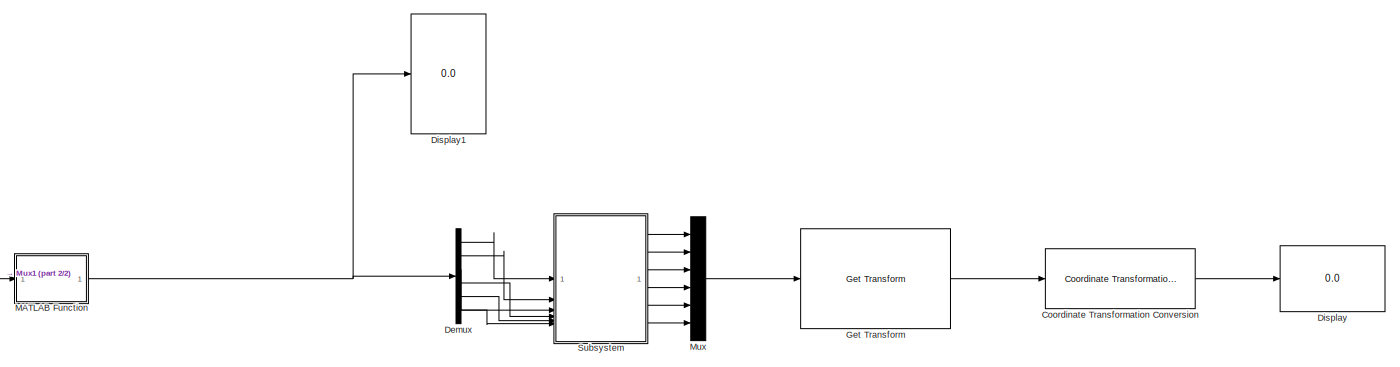
[diagram: root canvas - part 1/2, most of the canvas]
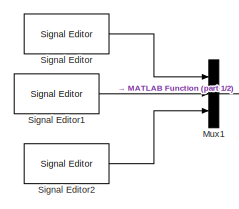
[diagram: root canvas - part 2/2, bottom left region]
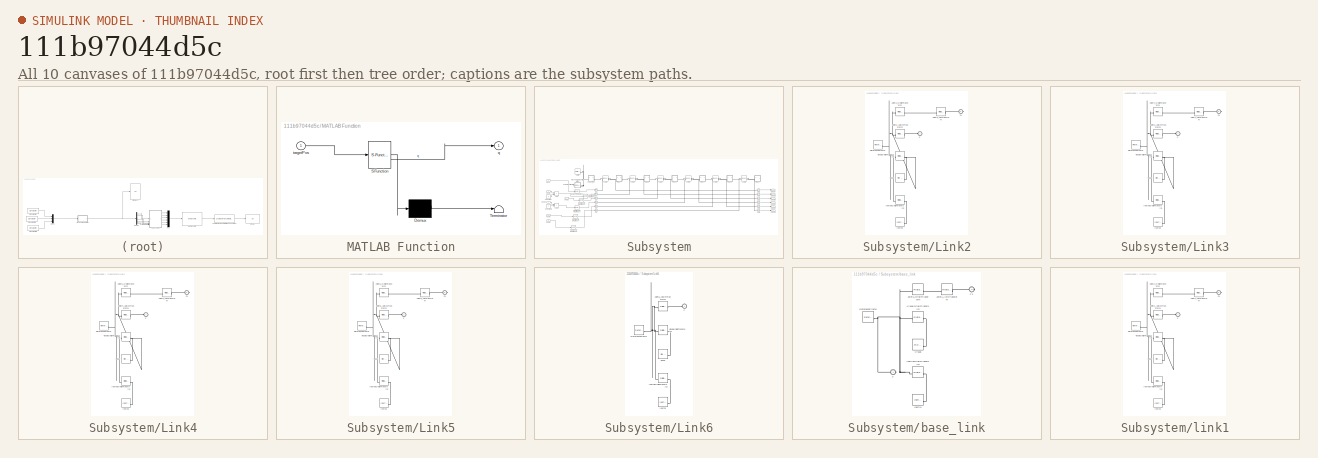
[diagram: thumbnail index - all 10 canvases of the model, root first then tree order]
MODEL slx_111b97044d5c
KIND model
CONFIG AbsTol = auto
CONFIG EnableMultiTasking = off
CONFIG FixedStep = auto
CONFIG MaxStep = auto
CONFIG MinStep = auto
CONFIG RelTol = 1e-3
CONFIG SampleTimeConstraint = Unconstrained
CONFIG SolverName = VariableStepAuto
CONFIG StartTime = 0.0
CONFIG StopTime = 10.0
BLOCK [Reference] Coordinate Transformation Conversion  REF=robotcorelib/Coordinate Transformation Conversion
  LibrarySourceBlock = robotutilslib/Coordinate Transformation Conversion
  SourceBlock = robotcorelib/Coordinate Transformation Conversion
  SourceType = robotics.slcore.internal.block.CoordinateTransformationConversion
BLOCK [Demux] Demux
  Outputs = 6
BLOCK [Display] Display
  Decimation = 1
BLOCK [Display] Display1
  Decimation = 1
BLOCK [Reference] Get Transform  REF=robotmaniplib/Get Transform
  SourceBlock = robotmaniplib/Get Transform
  SourceType = Get Transform
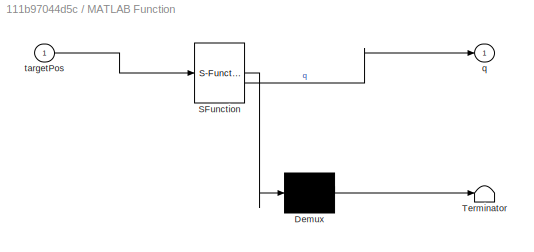
BLOCK [SubSystem] MATLAB Function
  ErrorFcn = Stateflow.Translate.translate
  PermitHierarchicalResolution = ExplicitOnly
  SFBlockType = MATLAB Function
  TreatAsAtomicUnit = on
BLOCK [Demux] MATLAB Function/ Demux 
  Outputs = 1
BLOCK [S-Function] MATLAB Function/ SFunction 
  EnableBusSupport = on
  FunctionName = sf_sfun
  PortCounts = [1 2]
  SFcnIsStateOwnerBlock = off
  SFunctionDeploymentMode = off
  Tag = Stateflow S-Function 2
BLOCK [Terminator] MATLAB Function/ Terminator 
BLOCK [Outport] MATLAB Function/q
BLOCK [Inport] MATLAB Function/targetPos
BLOCK [Mux] Mux
  DisplayOption = bar
  Inputs = 6
BLOCK [Mux] Mux1
  DisplayOption = bar
  Inputs = 3
BLOCK [Reference] Signal Editor  REF=SignalEditorBlockLib/Signal Editor
  LibrarySourceBlock = simulink/Sources/Signal Editor
  SourceBlock = SignalEditorBlockLib/Signal Editor
  SourceType = SignalEditor
  UserDataPersistent = on
BLOCK [Reference] Signal Editor1  REF=SignalEditorBlockLib/Signal Editor
  LibrarySourceBlock = simulink/Sources/Signal Editor
  SourceBlock = SignalEditorBlockLib/Signal Editor
  SourceType = SignalEditor
  UserDataPersistent = on
BLOCK [Reference] Signal Editor2  REF=SignalEditorBlockLib/Signal Editor
  LibrarySourceBlock = simulink/Sources/Signal Editor
  SourceBlock = SignalEditorBlockLib/Signal Editor
  SourceType = SignalEditor
  UserDataPersistent = on
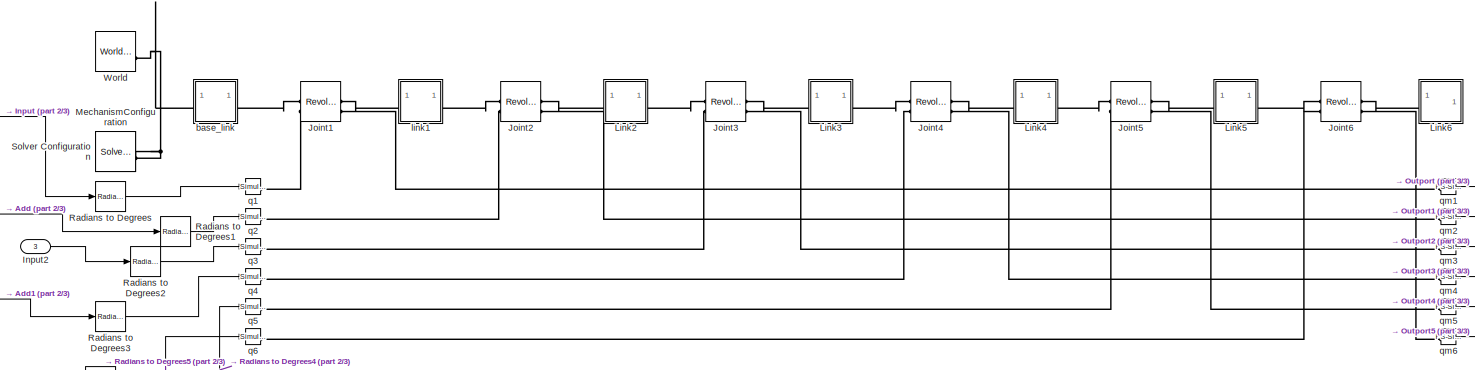
[diagram: Subsystem - part 1/3, full width, middle band]
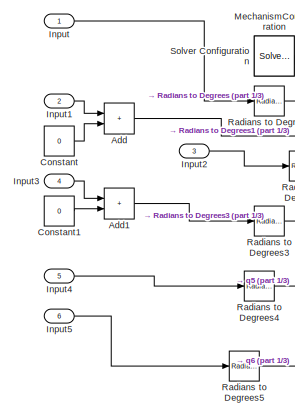
[diagram: Subsystem - part 2/3, left side, full height]
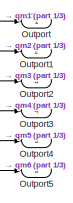
[diagram: Subsystem - part 3/3, middle right region]
BLOCK [SubSystem] Subsystem
BLOCK [Sum] Subsystem/Add
  IconShape = rectangular
BLOCK [Sum] Subsystem/Add1
  IconShape = rectangular
BLOCK [Constant] Subsystem/Constant
  Value = 0
BLOCK [Constant] Subsystem/Constant1
  Value = 0
BLOCK [Inport] Subsystem/Input
  PortDimensions = 1
  SampleTime = 1
  Unit = rad
BLOCK [Inport] Subsystem/Input1
  Port = 2
  PortDimensions = 1
  SampleTime = 1
  Unit = rad
BLOCK [Inport] Subsystem/Input2
  Port = 3
  PortDimensions = 1
  SampleTime = 1
  Unit = rad
BLOCK [Inport] Subsystem/Input3
  Port = 4
  PortDimensions = 1
  SampleTime = 1
  Unit = rad
BLOCK [Inport] Subsystem/Input4
  Port = 5
  PortDimensions = 1
  SampleTime = 1
  Unit = rad
BLOCK [Inport] Subsystem/Input5
  Port = 6
  PortDimensions = 1
  SampleTime = 1
  Unit = rad
BLOCK [Reference] Subsystem/Joint1  REF=sm_lib/Joints/Revolute Joint
  SourceBlock = sm_lib/Joints/Revolute Joint
  SourceType = Revolute Joint
BLOCK [Reference] Subsystem/Joint2  REF=sm_lib/Joints/Revolute Joint
  SourceBlock = sm_lib/Joints/Revolute Joint
  SourceType = Revolute Joint
BLOCK [Reference] Subsystem/Joint3  REF=sm_lib/Joints/Revolute Joint
  SourceBlock = sm_lib/Joints/Revolute Joint
  SourceType = Revolute Joint
BLOCK [Reference] Subsystem/Joint4  REF=sm_lib/Joints/Revolute Joint
  SourceBlock = sm_lib/Joints/Revolute Joint
  SourceType = Revolute Joint
BLOCK [Reference] Subsystem/Joint5  REF=sm_lib/Joints/Revolute Joint
  SourceBlock = sm_lib/Joints/Revolute Joint
  SourceType = Revolute Joint
BLOCK [Reference] Subsystem/Joint6  REF=sm_lib/Joints/Revolute Joint
  SourceBlock = sm_lib/Joints/Revolute Joint
  SourceType = Revolute Joint
BLOCK [SubSystem] Subsystem/Link2
BLOCK [PMIOPort] Subsystem/Link2/F
  Side = Left
BLOCK [PMIOPort] Subsystem/Link2/F1
  Port = 2
  Side = Right
BLOCK [Reference] Subsystem/Link2/Inertia  REF=sm_lib/Body Elements/Inertia
  SourceBlock = sm_lib/Body Elements/Inertia
  SourceType = Inertia
BLOCK [Reference] Subsystem/Link2/InertiaOriginTransform  REF=sm_lib/Frames and
Transforms/Rigid
Transform
  SourceBlock = sm_lib/Frames and\nTransforms/Rigid\nTransform
  SourceType = Rigid\nTransform
BLOCK [Reference] Subsystem/Link2/Joint2_AxisInvTransform  REF=sm_lib/Frames and
Transforms/Rigid
Transform
  SourceBlock = sm_lib/Frames and\nTransforms/Rigid\nTransform
  SourceType = Rigid\nTransform
BLOCK [Reference] Subsystem/Link2/Joint3_AxisTransform  REF=sm_lib/Frames and
Transforms/Rigid
Transform
  SourceBlock = sm_lib/Frames and\nTransforms/Rigid\nTransform
  SourceType = Rigid\nTransform
BLOCK [Reference] Subsystem/Link2/Joint3_OriginTransform  REF=sm_lib/Frames and
Transforms/Rigid
Transform
  SourceBlock = sm_lib/Frames and\nTransforms/Rigid\nTransform
  SourceType = Rigid\nTransform
BLOCK [Reference] Subsystem/Link2/ReferenceFrame  REF=sm_lib/Frames and
Transforms/Reference
Frame
  SourceBlock = sm_lib/Frames and\nTransforms/Reference\nFrame
  SourceType = Reference\nFrame
BLOCK [Reference] Subsystem/Link2/Visual  REF=sm_lib/Body Elements/File Solid
  SourceBlock = sm_lib/Body Elements/File Solid
  SourceType = File Solid
BLOCK [Reference] Subsystem/Link2/VisualOriginTransform  REF=sm_lib/Frames and
Transforms/Rigid
Transform
  SourceBlock = sm_lib/Frames and\nTransforms/Rigid\nTransform
  SourceType = Rigid\nTransform
BLOCK [SubSystem] Subsystem/Link3
BLOCK [PMIOPort] Subsystem/Link3/F
  Side = Left
BLOCK [PMIOPort] Subsystem/Link3/F1
  Port = 2
  Side = Right
BLOCK [Reference] Subsystem/Link3/Inertia  REF=sm_lib/Body Elements/Inertia
  SourceBlock = sm_lib/Body Elements/Inertia
  SourceType = Inertia
BLOCK [Reference] Subsystem/Link3/InertiaOriginTransform  REF=sm_lib/Frames and
Transforms/Rigid
Transform
  SourceBlock = sm_lib/Frames and\nTransforms/Rigid\nTransform
  SourceType = Rigid\nTransform
BLOCK [Reference] Subsystem/Link3/Joint3_AxisInvTransform  REF=sm_lib/Frames and
Transforms/Rigid
Transform
  SourceBlock = sm_lib/Frames and\nTransforms/Rigid\nTransform
  SourceType = Rigid\nTransform
BLOCK [Reference] Subsystem/Link3/Joint4_AxisTransform  REF=sm_lib/Frames and
Transforms/Rigid
Transform
  SourceBlock = sm_lib/Frames and\nTransforms/Rigid\nTransform
  SourceType = Rigid\nTransform
BLOCK [Reference] Subsystem/Link3/Joint4_OriginTransform  REF=sm_lib/Frames and
Transforms/Rigid
Transform
  SourceBlock = sm_lib/Frames and\nTransforms/Rigid\nTransform
  SourceType = Rigid\nTransform
BLOCK [Reference] Subsystem/Link3/ReferenceFrame  REF=sm_lib/Frames and
Transforms/Reference
Frame
  SourceBlock = sm_lib/Frames and\nTransforms/Reference\nFrame
  SourceType = Reference\nFrame
BLOCK [Reference] Subsystem/Link3/Visual  REF=sm_lib/Body Elements/File Solid
  SourceBlock = sm_lib/Body Elements/File Solid
  SourceType = File Solid
BLOCK [Reference] Subsystem/Link3/VisualOriginTransform  REF=sm_lib/Frames and
Transforms/Rigid
Transform
  SourceBlock = sm_lib/Frames and\nTransforms/Rigid\nTransform
  SourceType = Rigid\nTransform
BLOCK [SubSystem] Subsystem/Link4
BLOCK [PMIOPort] Subsystem/Link4/F
  Side = Left
BLOCK [PMIOPort] Subsystem/Link4/F1
  Port = 2
  Side = Right
BLOCK [Reference] Subsystem/Link4/Inertia  REF=sm_lib/Body Elements/Inertia
  SourceBlock = sm_lib/Body Elements/Inertia
  SourceType = Inertia
BLOCK [Reference] Subsystem/Link4/InertiaOriginTransform  REF=sm_lib/Frames and
Transforms/Rigid
Transform
  SourceBlock = sm_lib/Frames and\nTransforms/Rigid\nTransform
  SourceType = Rigid\nTransform
BLOCK [Reference] Subsystem/Link4/Joint4_AxisInvTransform  REF=sm_lib/Frames and
Transforms/Rigid
Transform
  SourceBlock = sm_lib/Frames and\nTransforms/Rigid\nTransform
  SourceType = Rigid\nTransform
BLOCK [Reference] Subsystem/Link4/Joint5_AxisTransform  REF=sm_lib/Frames and
Transforms/Rigid
Transform
  SourceBlock = sm_lib/Frames and\nTransforms/Rigid\nTransform
  SourceType = Rigid\nTransform
BLOCK [Reference] Subsystem/Link4/Joint5_OriginTransform  REF=sm_lib/Frames and
Transforms/Rigid
Transform
  SourceBlock = sm_lib/Frames and\nTransforms/Rigid\nTransform
  SourceType = Rigid\nTransform
BLOCK [Reference] Subsystem/Link4/ReferenceFrame  REF=sm_lib/Frames and
Transforms/Reference
Frame
  SourceBlock = sm_lib/Frames and\nTransforms/Reference\nFrame
  SourceType = Reference\nFrame
BLOCK [Reference] Subsystem/Link4/Visual  REF=sm_lib/Body Elements/File Solid
  SourceBlock = sm_lib/Body Elements/File Solid
  SourceType = File Solid
BLOCK [Reference] Subsystem/Link4/VisualOriginTransform  REF=sm_lib/Frames and
Transforms/Rigid
Transform
  SourceBlock = sm_lib/Frames and\nTransforms/Rigid\nTransform
  SourceType = Rigid\nTransform
BLOCK [SubSystem] Subsystem/Link5
BLOCK [PMIOPort] Subsystem/Link5/F
  Side = Left
BLOCK [PMIOPort] Subsystem/Link5/F1
  Port = 2
  Side = Right
BLOCK [Reference] Subsystem/Link5/Inertia  REF=sm_lib/Body Elements/Inertia
  SourceBlock = sm_lib/Body Elements/Inertia
  SourceType = Inertia
BLOCK [Reference] Subsystem/Link5/InertiaOriginTransform  REF=sm_lib/Frames and
Transforms/Rigid
Transform
  SourceBlock = sm_lib/Frames and\nTransforms/Rigid\nTransform
  SourceType = Rigid\nTransform
BLOCK [Reference] Subsystem/Link5/Joint5_AxisInvTransform  REF=sm_lib/Frames and
Transforms/Rigid
Transform
  SourceBlock = sm_lib/Frames and\nTransforms/Rigid\nTransform
  SourceType = Rigid\nTransform
BLOCK [Reference] Subsystem/Link5/Joint6_AxisTransform  REF=sm_lib/Frames and
Transforms/Rigid
Transform
  SourceBlock = sm_lib/Frames and\nTransforms/Rigid\nTransform
  SourceType = Rigid\nTransform
BLOCK [Reference] Subsystem/Link5/Joint6_OriginTransform  REF=sm_lib/Frames and
Transforms/Rigid
Transform
  SourceBlock = sm_lib/Frames and\nTransforms/Rigid\nTransform
  SourceType = Rigid\nTransform
BLOCK [Reference] Subsystem/Link5/ReferenceFrame  REF=sm_lib/Frames and
Transforms/Reference
Frame
  SourceBlock = sm_lib/Frames and\nTransforms/Reference\nFrame
  SourceType = Reference\nFrame
BLOCK [Reference] Subsystem/Link5/Visual  REF=sm_lib/Body Elements/File Solid
  SourceBlock = sm_lib/Body Elements/File Solid
  SourceType = File Solid
BLOCK [Reference] Subsystem/Link5/VisualOriginTransform  REF=sm_lib/Frames and
Transforms/Rigid
Transform
  SourceBlock = sm_lib/Frames and\nTransforms/Rigid\nTransform
  SourceType = Rigid\nTransform
BLOCK [SubSystem] Subsystem/Link6
BLOCK [PMIOPort] Subsystem/Link6/F
  Side = Left
BLOCK [Reference] Subsystem/Link6/Inertia  REF=sm_lib/Body Elements/Inertia
  SourceBlock = sm_lib/Body Elements/Inertia
  SourceType = Inertia
BLOCK [Reference] Subsystem/Link6/InertiaOriginTransform  REF=sm_lib/Frames and
Transforms/Rigid
Transform
  SourceBlock = sm_lib/Frames and\nTransforms/Rigid\nTransform
  SourceType = Rigid\nTransform
BLOCK [Reference] Subsystem/Link6/Joint6_AxisInvTransform  REF=sm_lib/Frames and
Transforms/Rigid
Transform
  SourceBlock = sm_lib/Frames and\nTransforms/Rigid\nTransform
  SourceType = Rigid\nTransform
BLOCK [Reference] Subsystem/Link6/ReferenceFrame  REF=sm_lib/Frames and
Transforms/Reference
Frame
  SourceBlock = sm_lib/Frames and\nTransforms/Reference\nFrame
  SourceType = Reference\nFrame
BLOCK [Reference] Subsystem/Link6/Visual  REF=sm_lib/Body Elements/File Solid
  SourceBlock = sm_lib/Body Elements/File Solid
  SourceType = File Solid
BLOCK [Reference] Subsystem/Link6/VisualOriginTransform  REF=sm_lib/Frames and
Transforms/Rigid
Transform
  SourceBlock = sm_lib/Frames and\nTransforms/Rigid\nTransform
  SourceType = Rigid\nTransform
BLOCK [Reference] Subsystem/MechanismConfiguration  REF=sm_lib/Utilities/Mechanism
Configuration
  SourceBlock = sm_lib/Utilities/Mechanism\nConfiguration
  SourceType = Mechanism\nConfiguration
BLOCK [Outport] Subsystem/Outport
BLOCK [Outport] Subsystem/Outport1
  Port = 2
BLOCK [Outport] Subsystem/Outport2
  Port = 3
BLOCK [Outport] Subsystem/Outport3
  Port = 4
BLOCK [Outport] Subsystem/Outport4
  Port = 5
BLOCK [Outport] Subsystem/Outport5
  Port = 6
BLOCK [Reference] Subsystem/Radians to Degrees  REF=simulink_extras/Transformations/Radians
to Degrees
  SourceBlock = simulink_extras/Transformations/Radians\nto Degrees
  SourceType = RadiansToDegrees
BLOCK [Reference] Subsystem/Radians to Degrees1  REF=simulink_extras/Transformations/Radians
to Degrees
  SourceBlock = simulink_extras/Transformations/Radians\nto Degrees
  SourceType = RadiansToDegrees
BLOCK [Reference] Subsystem/Radians to Degrees2  REF=simulink_extras/Transformations/Radians
to Degrees
  SourceBlock = simulink_extras/Transformations/Radians\nto Degrees
  SourceType = RadiansToDegrees
BLOCK [Reference] Subsystem/Radians to Degrees3  REF=simulink_extras/Transformations/Radians
to Degrees
  SourceBlock = simulink_extras/Transformations/Radians\nto Degrees
  SourceType = RadiansToDegrees
BLOCK [Reference] Subsystem/Radians to Degrees4  REF=simulink_extras/Transformations/Radians
to Degrees
  SourceBlock = simulink_extras/Transformations/Radians\nto Degrees
  SourceType = RadiansToDegrees
BLOCK [Reference] Subsystem/Radians to Degrees5  REF=simulink_extras/Transformations/Radians
to Degrees
  SourceBlock = simulink_extras/Transformations/Radians\nto Degrees
  SourceType = RadiansToDegrees
BLOCK [Reference] Subsystem/Solver Configuration  REF=nesl_utility/Solver
Configuration
  SourceBlock = nesl_utility/Solver\nConfiguration
  SourceType = Solver\nConfiguration
BLOCK [Reference] Subsystem/World  REF=sm_lib/Frames and
Transforms/World Frame
  SourceBlock = sm_lib/Frames and\nTransforms/World Frame
  SourceType = World Frame
BLOCK [SubSystem] Subsystem/base_link
BLOCK [PMIOPort] Subsystem/base_link/F
  Side = Left
BLOCK [PMIOPort] Subsystem/base_link/F1
  Port = 2
  Side = Right
BLOCK [Reference] Subsystem/base_link/Inertia  REF=sm_lib/Body Elements/Inertia
  SourceBlock = sm_lib/Body Elements/Inertia
  SourceType = Inertia
BLOCK [Reference] Subsystem/base_link/InertiaOriginTransform  REF=sm_lib/Frames and
Transforms/Rigid
Transform
  SourceBlock = sm_lib/Frames and\nTransforms/Rigid\nTransform
  SourceType = Rigid\nTransform
BLOCK [Reference] Subsystem/base_link/Joint1_AxisTransform  REF=sm_lib/Frames and
Transforms/Rigid
Transform
  SourceBlock = sm_lib/Frames and\nTransforms/Rigid\nTransform
  SourceType = Rigid\nTransform
BLOCK [Reference] Subsystem/base_link/Joint1_OriginTransform  REF=sm_lib/Frames and
Transforms/Rigid
Transform
  SourceBlock = sm_lib/Frames and\nTransforms/Rigid\nTransform
  SourceType = Rigid\nTransform
BLOCK [Reference] Subsystem/base_link/ReferenceFrame  REF=sm_lib/Frames and
Transforms/Reference
Frame
  SourceBlock = sm_lib/Frames and\nTransforms/Reference\nFrame
  SourceType = Reference\nFrame
BLOCK [Reference] Subsystem/base_link/Visual  REF=sm_lib/Body Elements/File Solid
  SourceBlock = sm_lib/Body Elements/File Solid
  SourceType = File Solid
BLOCK [Reference] Subsystem/base_link/VisualOriginTransform  REF=sm_lib/Frames and
Transforms/Rigid
Transform
  SourceBlock = sm_lib/Frames and\nTransforms/Rigid\nTransform
  SourceType = Rigid\nTransform
BLOCK [SubSystem] Subsystem/link1
BLOCK [PMIOPort] Subsystem/link1/F
  Side = Left
BLOCK [PMIOPort] Subsystem/link1/F1
  Port = 2
  Side = Right
BLOCK [Reference] Subsystem/link1/Inertia  REF=sm_lib/Body Elements/Inertia
  SourceBlock = sm_lib/Body Elements/Inertia
  SourceType = Inertia
BLOCK [Reference] Subsystem/link1/InertiaOriginTransform  REF=sm_lib/Frames and
Transforms/Rigid
Transform
  SourceBlock = sm_lib/Frames and\nTransforms/Rigid\nTransform
  SourceType = Rigid\nTransform
BLOCK [Reference] Subsystem/link1/Joint1_AxisInvTransform  REF=sm_lib/Frames and
Transforms/Rigid
Transform
  SourceBlock = sm_lib/Frames and\nTransforms/Rigid\nTransform
  SourceType = Rigid\nTransform
BLOCK [Reference] Subsystem/link1/Joint2_AxisTransform  REF=sm_lib/Frames and
Transforms/Rigid
Transform
  SourceBlock = sm_lib/Frames and\nTransforms/Rigid\nTransform
  SourceType = Rigid\nTransform
BLOCK [Reference] Subsystem/link1/Joint2_OriginTransform  REF=sm_lib/Frames and
Transforms/Rigid
Transform
  SourceBlock = sm_lib/Frames and\nTransforms/Rigid\nTransform
  SourceType = Rigid\nTransform
BLOCK [Reference] Subsystem/link1/ReferenceFrame  REF=sm_lib/Frames and
Transforms/Reference
Frame
  SourceBlock = sm_lib/Frames and\nTransforms/Reference\nFrame
  SourceType = Reference\nFrame
BLOCK [Reference] Subsystem/link1/Visual  REF=sm_lib/Body Elements/File Solid
  SourceBlock = sm_lib/Body Elements/File Solid
  SourceType = File Solid
BLOCK [Reference] Subsystem/link1/VisualOriginTransform  REF=sm_lib/Frames and
Transforms/Rigid
Transform
  SourceBlock = sm_lib/Frames and\nTransforms/Rigid\nTransform
  SourceType = Rigid\nTransform
BLOCK [Reference] Subsystem/q1  REF=nesl_utility/Simulink-PS
Converter
  SourceBlock = nesl_utility/Simulink-PS\nConverter
  SourceType = Simulink-PS\nConverter
BLOCK [Reference] Subsystem/q2  REF=nesl_utility/Simulink-PS
Converter
  SourceBlock = nesl_utility/Simulink-PS\nConverter
  SourceType = Simulink-PS\nConverter
BLOCK [Reference] Subsystem/q3  REF=nesl_utility/Simulink-PS
Converter
  SourceBlock = nesl_utility/Simulink-PS\nConverter
  SourceType = Simulink-PS\nConverter
BLOCK [Reference] Subsystem/q4  REF=nesl_utility/Simulink-PS
Converter
  SourceBlock = nesl_utility/Simulink-PS\nConverter
  SourceType = Simulink-PS\nConverter
BLOCK [Reference] Subsystem/q5  REF=nesl_utility/Simulink-PS
Converter
  SourceBlock = nesl_utility/Simulink-PS\nConverter
  SourceType = Simulink-PS\nConverter
BLOCK [Reference] Subsystem/q6  REF=nesl_utility/Simulink-PS
Converter
  SourceBlock = nesl_utility/Simulink-PS\nConverter
  SourceType = Simulink-PS\nConverter
BLOCK [Reference] Subsystem/qm1  REF=nesl_utility/PS-Simulink
Converter
  SourceBlock = nesl_utility/PS-Simulink\nConverter
  SourceType = PS-Simulink\nConverter
BLOCK [Reference] Subsystem/qm2  REF=nesl_utility/PS-Simulink
Converter
  SourceBlock = nesl_utility/PS-Simulink\nConverter
  SourceType = PS-Simulink\nConverter
BLOCK [Reference] Subsystem/qm3  REF=nesl_utility/PS-Simulink
Converter
  SourceBlock = nesl_utility/PS-Simulink\nConverter
  SourceType = PS-Simulink\nConverter
BLOCK [Reference] Subsystem/qm4  REF=nesl_utility/PS-Simulink
Converter
  SourceBlock = nesl_utility/PS-Simulink\nConverter
  SourceType = PS-Simulink\nConverter
BLOCK [Reference] Subsystem/qm5  REF=nesl_utility/PS-Simulink
Converter
  SourceBlock = nesl_utility/PS-Simulink\nConverter
  SourceType = PS-Simulink\nConverter
BLOCK [Reference] Subsystem/qm6  REF=nesl_utility/PS-Simulink
Converter
  SourceBlock = nesl_utility/PS-Simulink\nConverter
  SourceType = PS-Simulink\nConverter
LINE Coordinate Transformation Conversion:1 -> Display:1
LINE Demux:1 -> Subsystem:1
LINE Demux:2 -> Subsystem:2
LINE Demux:3 -> Subsystem:3
LINE Demux:4 -> Subsystem:4
LINE Demux:5 -> Subsystem:5
LINE Demux:6 -> Subsystem:6
LINE Get Transform:1 -> Coordinate Transformation Conversion:1
NET MATLAB Function:1 -> Demux:1, Display1:1
LINE Mux1:1 -> MATLAB Function:1
LINE Mux:1 -> Get Transform:1
LINE Signal Editor1:1 -> Mux1:2
LINE Signal Editor2:1 -> Mux1:3
LINE Signal Editor:1 -> Mux1:1
LINE Subsystem/Add1:1 -> Subsystem/Radians to Degrees3:1
LINE Subsystem/Add:1 -> Subsystem/Radians to Degrees1:1
LINE Subsystem/Constant1:1 -> Subsystem/Add1:2
LINE Subsystem/Constant:1 -> Subsystem/Add:2
LINE Subsystem/Input1:1 -> Subsystem/Add:1
LINE Subsystem/Input2:1 -> Subsystem/Radians to Degrees2:1
LINE Subsystem/Input3:1 -> Subsystem/Add1:1
LINE Subsystem/Input4:1 -> Subsystem/Radians to Degrees4:1
LINE Subsystem/Input5:1 -> Subsystem/Radians to Degrees5:1
LINE Subsystem/Input:1 -> Subsystem/Radians to Degrees:1
LINE Subsystem/Radians to Degrees1:1 -> Subsystem/q2:1
LINE Subsystem/Radians to Degrees2:1 -> Subsystem/q3:1
LINE Subsystem/Radians to Degrees3:1 -> Subsystem/q4:1
LINE Subsystem/Radians to Degrees4:1 -> Subsystem/q5:1
LINE Subsystem/Radians to Degrees5:1 -> Subsystem/q6:1
LINE Subsystem/Radians to Degrees:1 -> Subsystem/q1:1
LINE Subsystem/qm1:1 -> Subsystem/Outport:1
LINE Subsystem/qm2:1 -> Subsystem/Outport1:1
LINE Subsystem/qm3:1 -> Subsystem/Outport2:1
LINE Subsystem/qm4:1 -> Subsystem/Outport3:1
LINE Subsystem/qm5:1 -> Subsystem/Outport4:1
LINE Subsystem/qm6:1 -> Subsystem/Outport5:1
LINE Subsystem:1 -> Mux:1
LINE Subsystem:2 -> Mux:2
LINE Subsystem:3 -> Mux:3
LINE Subsystem:4 -> Mux:4
LINE Subsystem:5 -> Mux:5
LINE Subsystem:6 -> Mux:6
PLINE Subsystem/Joint1:LConn1 -- Subsystem/base_link:RConn1
PLINE Subsystem/Joint1:LConn2 -- Subsystem/q1:RConn1
PLINE Subsystem/Joint1:RConn1 -- Subsystem/link1:LConn1
PLINE Subsystem/Joint1:RConn2 -- Subsystem/qm1:LConn1
PLINE Subsystem/Joint2:LConn1 -- Subsystem/link1:RConn1
PLINE Subsystem/Joint2:LConn2 -- Subsystem/q2:RConn1
PLINE Subsystem/Joint2:RConn1 -- Subsystem/Link2:LConn1
PLINE Subsystem/Joint2:RConn2 -- Subsystem/qm2:LConn1
PLINE Subsystem/Joint3:LConn1 -- Subsystem/Link2:RConn1
PLINE Subsystem/Joint3:LConn2 -- Subsystem/q3:RConn1
PLINE Subsystem/Joint3:RConn1 -- Subsystem/Link3:LConn1
PLINE Subsystem/Joint3:RConn2 -- Subsystem/qm3:LConn1
PLINE Subsystem/Joint4:LConn1 -- Subsystem/Link3:RConn1
PLINE Subsystem/Joint4:LConn2 -- Subsystem/q4:RConn1
PLINE Subsystem/Joint4:RConn1 -- Subsystem/Link4:LConn1
PLINE Subsystem/Joint4:RConn2 -- Subsystem/qm4:LConn1
PLINE Subsystem/Joint5:LConn1 -- Subsystem/Link4:RConn1
PLINE Subsystem/Joint5:LConn2 -- Subsystem/q5:RConn1
PLINE Subsystem/Joint5:RConn1 -- Subsystem/Link5:LConn1
PLINE Subsystem/Joint5:RConn2 -- Subsystem/qm5:LConn1
PLINE Subsystem/Joint6:LConn1 -- Subsystem/Link5:RConn1
PLINE Subsystem/Joint6:LConn2 -- Subsystem/q6:RConn1
PLINE Subsystem/Joint6:RConn1 -- Subsystem/Link6:LConn1
PLINE Subsystem/Joint6:RConn2 -- Subsystem/qm6:LConn1
PLINE Subsystem/Link2/F1:RConn1 -- Subsystem/Link2/Joint3_AxisTransform:RConn1
PLINE Subsystem/Link2/F:RConn1 -- Subsystem/Link2/Joint2_AxisInvTransform:RConn1
PLINE Subsystem/Link2/Inertia:RConn1 -- Subsystem/Link2/InertiaOriginTransform:RConn1
PNET net1: Subsystem/Link2/InertiaOriginTransform:LConn1 -- Subsystem/Link2/Joint2_AxisInvTransform:LConn1 -- Subsystem/Link2/Joint3_OriginTransform:LConn1 -- Subsystem/Link2/ReferenceFrame:RConn1 -- Subsystem/Link2/VisualOriginTransform:LConn1
PLINE Subsystem/Link2/Joint3_AxisTransform:LConn1 -- Subsystem/Link2/Joint3_OriginTransform:RConn1
PLINE Subsystem/Link2/Visual:RConn1 -- Subsystem/Link2/VisualOriginTransform:RConn1
PLINE Subsystem/Link3/F1:RConn1 -- Subsystem/Link3/Joint4_AxisTransform:RConn1
PLINE Subsystem/Link3/F:RConn1 -- Subsystem/Link3/Joint3_AxisInvTransform:RConn1
PLINE Subsystem/Link3/Inertia:RConn1 -- Subsystem/Link3/InertiaOriginTransform:RConn1
PNET net2: Subsystem/Link3/InertiaOriginTransform:LConn1 -- Subsystem/Link3/Joint3_AxisInvTransform:LConn1 -- Subsystem/Link3/Joint4_OriginTransform:LConn1 -- Subsystem/Link3/ReferenceFrame:RConn1 -- Subsystem/Link3/VisualOriginTransform:LConn1
PLINE Subsystem/Link3/Joint4_AxisTransform:LConn1 -- Subsystem/Link3/Joint4_OriginTransform:RConn1
PLINE Subsystem/Link3/Visual:RConn1 -- Subsystem/Link3/VisualOriginTransform:RConn1
PLINE Subsystem/Link4/F1:RConn1 -- Subsystem/Link4/Joint5_AxisTransform:RConn1
PLINE Subsystem/Link4/F:RConn1 -- Subsystem/Link4/Joint4_AxisInvTransform:RConn1
PLINE Subsystem/Link4/Inertia:RConn1 -- Subsystem/Link4/InertiaOriginTransform:RConn1
PNET net3: Subsystem/Link4/InertiaOriginTransform:LConn1 -- Subsystem/Link4/Joint4_AxisInvTransform:LConn1 -- Subsystem/Link4/Joint5_OriginTransform:LConn1 -- Subsystem/Link4/ReferenceFrame:RConn1 -- Subsystem/Link4/VisualOriginTransform:LConn1
PLINE Subsystem/Link4/Joint5_AxisTransform:LConn1 -- Subsystem/Link4/Joint5_OriginTransform:RConn1
PLINE Subsystem/Link4/Visual:RConn1 -- Subsystem/Link4/VisualOriginTransform:RConn1
PLINE Subsystem/Link5/F1:RConn1 -- Subsystem/Link5/Joint6_AxisTransform:RConn1
PLINE Subsystem/Link5/F:RConn1 -- Subsystem/Link5/Joint5_AxisInvTransform:RConn1
PLINE Subsystem/Link5/Inertia:RConn1 -- Subsystem/Link5/InertiaOriginTransform:RConn1
PNET net4: Subsystem/Link5/InertiaOriginTransform:LConn1 -- Subsystem/Link5/Joint5_AxisInvTransform:LConn1 -- Subsystem/Link5/Joint6_OriginTransform:LConn1 -- Subsystem/Link5/ReferenceFrame:RConn1 -- Subsystem/Link5/VisualOriginTransform:LConn1
PLINE Subsystem/Link5/Joint6_AxisTransform:LConn1 -- Subsystem/Link5/Joint6_OriginTransform:RConn1
PLINE Subsystem/Link5/Visual:RConn1 -- Subsystem/Link5/VisualOriginTransform:RConn1
PLINE Subsystem/Link6/F:RConn1 -- Subsystem/Link6/Joint6_AxisInvTransform:RConn1
PLINE Subsystem/Link6/Inertia:RConn1 -- Subsystem/Link6/InertiaOriginTransform:RConn1
PNET net5: Subsystem/Link6/InertiaOriginTransform:LConn1 -- Subsystem/Link6/Joint6_AxisInvTransform:LConn1 -- Subsystem/Link6/ReferenceFrame:RConn1 -- Subsystem/Link6/VisualOriginTransform:LConn1
PLINE Subsystem/Link6/Visual:RConn1 -- Subsystem/Link6/VisualOriginTransform:RConn1
PNET net6: Subsystem/MechanismConfiguration:RConn1 -- Subsystem/Solver Configuration:RConn1 -- Subsystem/World:RConn1 -- Subsystem/base_link:LConn1
PLINE Subsystem/base_link/F1:RConn1 -- Subsystem/base_link/Joint1_AxisTransform:RConn1
PNET net7: Subsystem/base_link/F:RConn1 -- Subsystem/base_link/InertiaOriginTransform:LConn1 -- Subsystem/base_link/Joint1_OriginTransform:LConn1 -- Subsystem/base_link/ReferenceFrame:RConn1 -- Subsystem/base_link/VisualOriginTransform:LConn1
PLINE Subsystem/base_link/Inertia:RConn1 -- Subsystem/base_link/InertiaOriginTransform:RConn1
PLINE Subsystem/base_link/Joint1_AxisTransform:LConn1 -- Subsystem/base_link/Joint1_OriginTransform:RConn1
PLINE Subsystem/base_link/Visual:RConn1 -- Subsystem/base_link/VisualOriginTransform:RConn1
PLINE Subsystem/link1/F1:RConn1 -- Subsystem/link1/Joint2_AxisTransform:RConn1
PLINE Subsystem/link1/F:RConn1 -- Subsystem/link1/Joint1_AxisInvTransform:RConn1
PLINE Subsystem/link1/Inertia:RConn1 -- Subsystem/link1/InertiaOriginTransform:RConn1
PNET net8: Subsystem/link1/InertiaOriginTransform:LConn1 -- Subsystem/link1/Joint1_AxisInvTransform:LConn1 -- Subsystem/link1/Joint2_OriginTransform:LConn1 -- Subsystem/link1/ReferenceFrame:RConn1 -- Subsystem/link1/VisualOriginTransform:LConn1
PLINE Subsystem/link1/Joint2_AxisTransform:LConn1 -- Subsystem/link1/Joint2_OriginTransform:RConn1
PLINE Subsystem/link1/Visual:RConn1 -- Subsystem/link1/VisualOriginTransform:RConn1
note: NET lines group one-source signal fan-out (src -> all destinations, sorted); 1:1 wires keep LINE; PNET lines group multi-terminal physical nets as a canonical sorted terminal list (undirected conserving connections); 2-terminal nets keep the pairwise PLINE form
CHART MATLAB Function states=1 transitions=1
  STATE_LABEL 'eML_blk_kernel()'
  STATE_LABEL 'SCRIPT:\nfunction q = gik_solver_block(targetPos)\n% targetPos is a 3x1 vector [x; y; z]\n\npersistent robot gik posTgt orientTgt\n\nif isempty(robot)\n    robot = importrobot(\'myCobot28.urdf\', ...\n        \'MeshPath\', "<userpath>\\Downloads\\New folder (7)\\meshes", ...\n        \'DataFormat\', \'row\');\n\n    gik = generalizedInverseKinematics( ...\n        \'RigidBodyTree\', robot, ...\n        \'ConstraintInputs\', ...<+562ch>'
CHART  states=0 transitions=0
